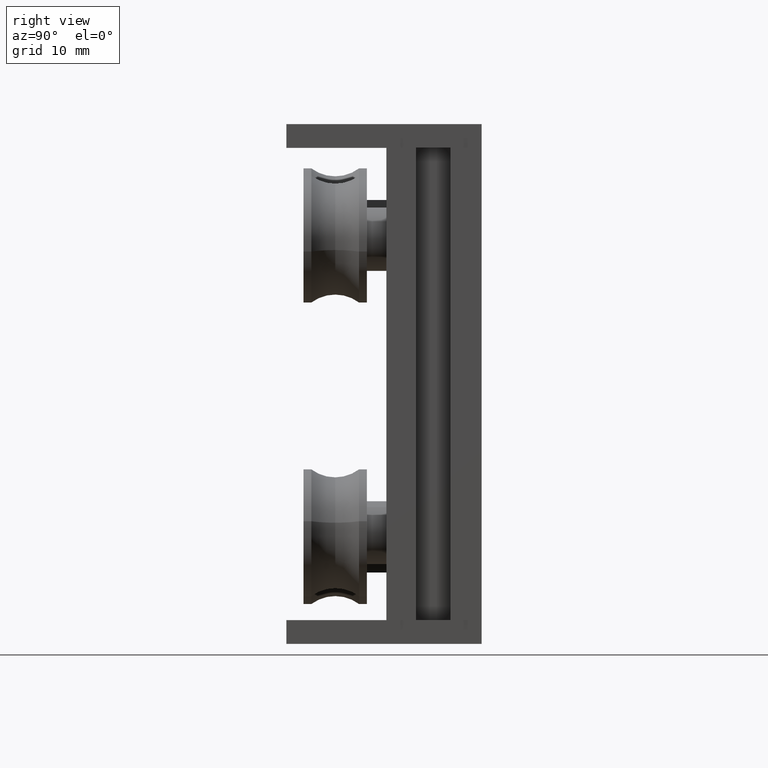
[diagram: clean part render]
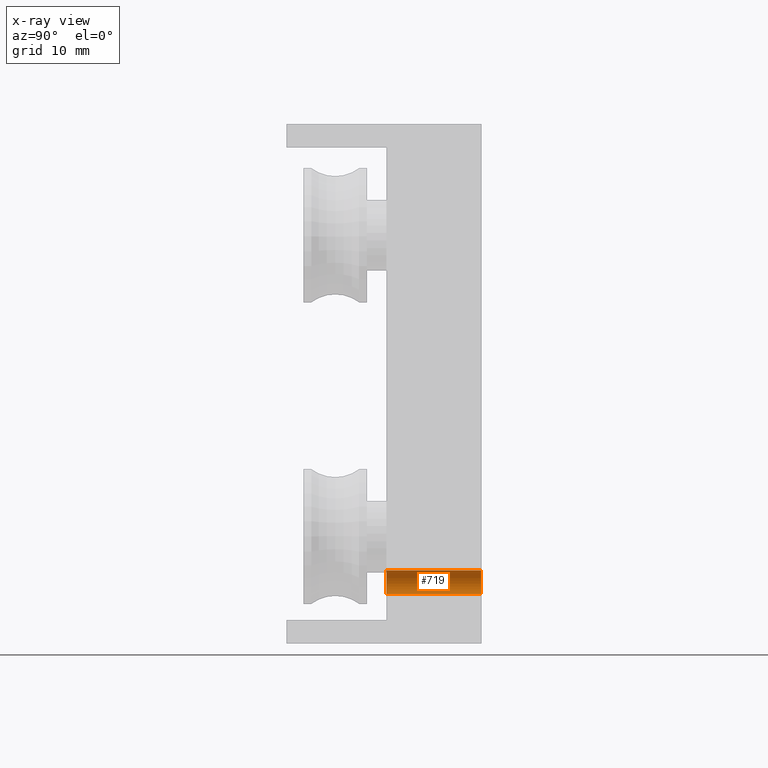
[diagram: x-ray — body ghosted, one internal face saturated and labeled with its STEP entity id]
A machine part, right view, then the same camera in x-ray: the body is ghosted and one INTERNAL B-rep face — a face not visible from any outside direction — is saturated and labeled: STEP entity #719.
In plain terms, the highlighted cylindrical surface (edge-blend (fillet) strip) has radius 1.5 mm, axis along (0, 1, 0).
Its self-contained STEP definition (entity closure, byte-faithful):
#17 = ORIENTED_EDGE ( 'NONE', *, *, #1856, .F. ) ;
#88 = CIRCLE ( 'NONE', #1954, 1.500000000000000444 ) ;
#147 = EDGE_CURVE ( 'NONE', #1656, #1055, #540, .T. ) ;
#159 = CARTESIAN_POINT ( 'NONE',  ( 1.402220585023719300E-15, 11.90000000000000036, -5.250000000000000000 ) ) ;
#289 = CARTESIAN_POINT ( 'NONE',  ( 1.585917604895822220E-15, 11.90000000000000036, -6.750000000000000888 ) ) ;
#322 = DIRECTION ( 'NONE',  ( -0.000000000000000000, 1.000000000000000000, -0.000000000000000000 ) ) ;
#327 = ORIENTED_EDGE ( 'NONE', *, *, #147, .F. ) ;
#344 = AXIS2_PLACEMENT_3D ( 'NONE', #1506, #3285, #3218 ) ;
#409 = CARTESIAN_POINT ( 'NONE',  ( 1.402220585023719300E-15, 0.000000000000000000, -5.250000000000000000 ) ) ;
#437 = EDGE_CURVE ( 'NONE', #3041, #1649, #1610, .T. ) ;
#540 = LINE ( 'NONE', #555, #2509 ) ;
#555 = CARTESIAN_POINT ( 'NONE',  ( 1.402220585023719300E-15, 0.000000000000000000, -3.750000000000000000 ) ) ;
#719 = ADVANCED_FACE ( 'NONE', ( #1156 ), #2691, .F. ) ;
#827 = CARTESIAN_POINT ( 'NONE',  ( 1.585917604895822220E-15, 0.000000000000000000, -6.750000000000000888 ) ) ;
#1055 = VERTEX_POINT ( 'NONE', #1691 ) ;
#1156 = FACE_OUTER_BOUND ( 'NONE', #3213, .T. ) ;
#1419 = DIRECTION ( 'NONE',  ( 0.000000000000000000, 1.000000000000000000, 0.000000000000000000 ) ) ;
#1506 = CARTESIAN_POINT ( 'NONE',  ( 1.402220585023719300E-15, 0.000000000000000000, -5.250000000000000000 ) ) ;
#1605 = CIRCLE ( 'NONE', #344, 1.500000000000000444 ) ;
#1610 = LINE ( 'NONE', #827, #2237 ) ;
#1649 = VERTEX_POINT ( 'NONE', #289 ) ;
#1656 = VERTEX_POINT ( 'NONE', #2810 ) ;
#1691 = CARTESIAN_POINT ( 'NONE',  ( 1.402220585023719300E-15, 11.90000000000000036, -3.750000000000000000 ) ) ;
#1701 = DIRECTION ( 'NONE',  ( -0.000000000000000000, 1.000000000000000000, -0.000000000000000000 ) ) ;
#1733 = AXIS2_PLACEMENT_3D ( 'NONE', #409, #1701, #2440 ) ;
#1856 = EDGE_CURVE ( 'NONE', #3041, #1656, #1605, .T. ) ;
#1873 = ORIENTED_EDGE ( 'NONE', *, *, #3272, .T. ) ;
#1954 = AXIS2_PLACEMENT_3D ( 'NONE', #159, #1419, #2756 ) ;
#2237 = VECTOR ( 'NONE', #322, 1000.000000000000000 ) ;
#2347 = ORIENTED_EDGE ( 'NONE', *, *, #437, .T. ) ;
#2440 = DIRECTION ( 'NONE',  ( 0.000000000000000000, 0.000000000000000000, 1.000000000000000000 ) ) ;
#2509 = VECTOR ( 'NONE', #2527, 1000.000000000000000 ) ;
#2527 = DIRECTION ( 'NONE',  ( -0.000000000000000000, 1.000000000000000000, -0.000000000000000000 ) ) ;
#2646 = CARTESIAN_POINT ( 'NONE',  ( 1.585917604895822220E-15, 0.000000000000000000, -6.750000000000000888 ) ) ;
#2691 = CYLINDRICAL_SURFACE ( 'NONE', #1733, 1.500000000000000444 ) ;
#2756 = DIRECTION ( 'NONE',  ( 0.000000000000000000, 0.000000000000000000, 1.000000000000000000 ) ) ;
#2810 = CARTESIAN_POINT ( 'NONE',  ( 1.402220585023719300E-15, 0.000000000000000000, -3.750000000000000000 ) ) ;
#3041 = VERTEX_POINT ( 'NONE', #2646 ) ;
#3213 = EDGE_LOOP ( 'NONE', ( #17, #2347, #1873, #327 ) ) ;
#3218 = DIRECTION ( 'NONE',  ( 0.000000000000000000, 0.000000000000000000, 1.000000000000000000 ) ) ;
#3272 = EDGE_CURVE ( 'NONE', #1649, #1055, #88, .T. ) ;
#3285 = DIRECTION ( 'NONE',  ( 0.000000000000000000, 1.000000000000000000, 0.000000000000000000 ) ) ;